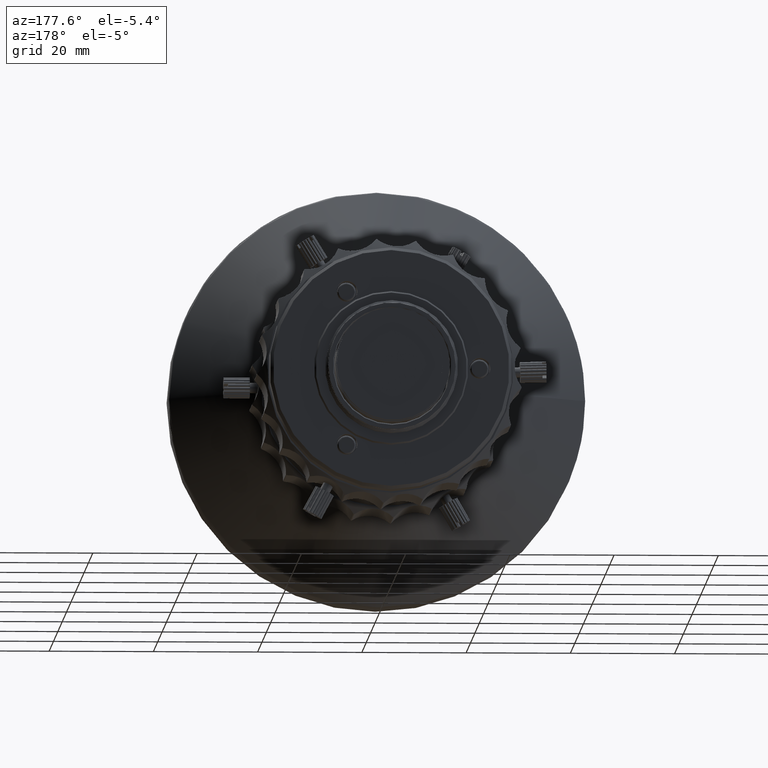
[diagram: clean part render]
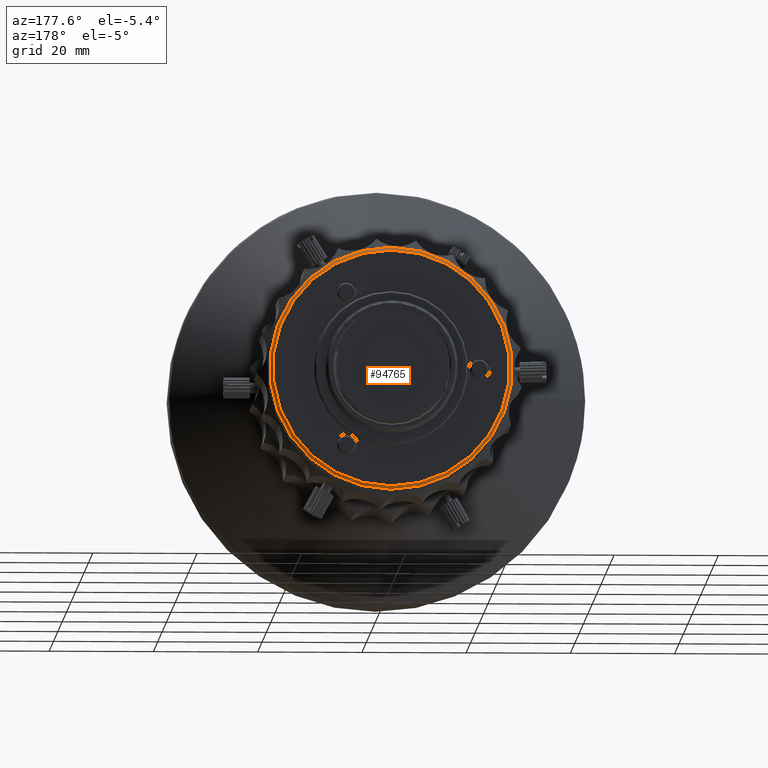
[diagram: same view with one face highlighted and labeled with its STEP entity id]
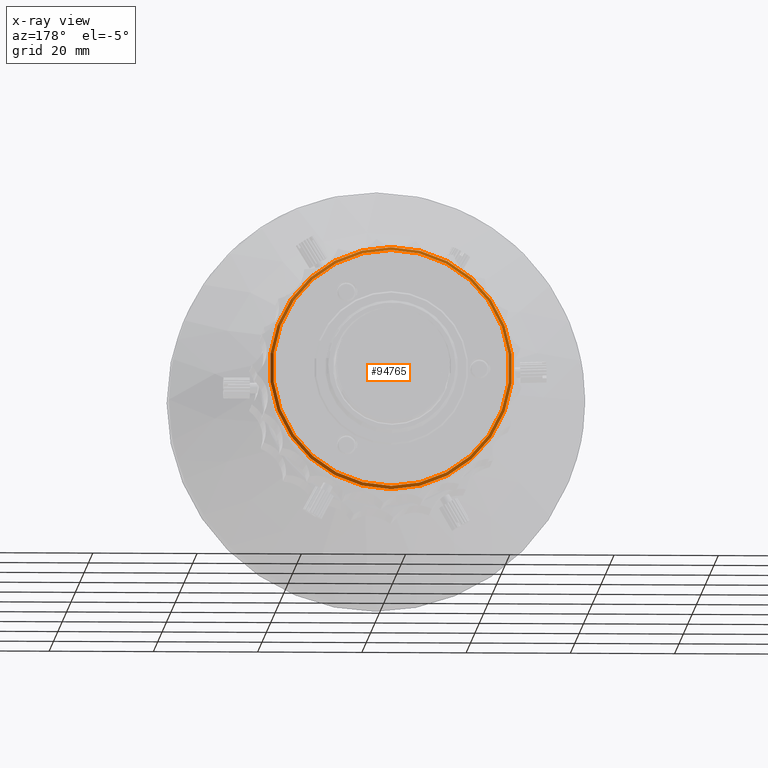
[diagram: x-ray of the same camera — body ghosted, the highlighted face saturated]
A machine part, auxiliary view. The second image highlights one B-rep face of the part: STEP entity #94765.
The next image is the same camera in x-ray: the body ghosted, the highlighted face saturated — about 0% of this face is hidden behind the body in this view.
In plain terms, the highlighted conical surface has half-angle 45 deg.
Its self-contained STEP definition (entity closure, byte-faithful):
#2472 = DIRECTION ( 'NONE',  ( 4.757805020752761859E-08, 0.000000000000000000, 0.9999999999999988898 ) ) ;
#3649 = AXIS2_PLACEMENT_3D ( 'NONE', #45673, #87747, #2472 ) ;
#8805 = CIRCLE ( 'NONE', #23322, 23.30000183082180953 ) ;
#14011 = EDGE_CURVE ( 'NONE', #38448, #38448, #52704, .T. ) ;
#14474 = EDGE_LOOP ( 'NONE', ( #43346 ) ) ;
#18735 = FACE_BOUND ( 'NONE', #14474, .T. ) ;
#23322 = AXIS2_PLACEMENT_3D ( 'NONE', #41943, #43067, #44753 ) ;
#25030 = EDGE_LOOP ( 'NONE', ( #70558 ) ) ;
#29374 = CARTESIAN_POINT ( 'NONE',  ( 1.809033205897187488E-06, 73.51993811429849757, 23.30000223523517278 ) ) ;
#35820 = FACE_OUTER_BOUND ( 'NONE', #25030, .T. ) ;
#37488 = DIRECTION ( 'NONE',  ( 8.276111117004355824E-19, -1.000000000000000000, 4.121950411566822445E-17 ) ) ;
#38448 = VERTEX_POINT ( 'NONE', #47532 ) ;
#41041 = EDGE_CURVE ( 'NONE', #74242, #74242, #8805, .T. ) ;
#41943 = CARTESIAN_POINT ( 'NONE',  ( 7.004645489548619826E-07, 73.51993811429849757, 4.044133876930619027E-07 ) ) ;
#43067 = DIRECTION ( 'NONE',  ( -8.276111117004355824E-19, 1.000000000000000000, -4.121950411566822445E-17 ) ) ;
#43346 = ORIENTED_EDGE ( 'NONE', *, *, #14011, .T. ) ;
#44753 = DIRECTION ( 'NONE',  ( 4.757805020752761859E-08, 0.000000000000000000, 0.9999999999999988898 ) ) ;
#45673 = CARTESIAN_POINT ( 'NONE',  ( 7.004645489543653037E-07, 74.11993814910550782, 4.044133876683301817E-07 ) ) ;
#47532 = CARTESIAN_POINT ( 'NONE',  ( 1.780486377428271892E-06, 74.11993814910550782, 22.70000227004319271 ) ) ;
#52704 = CIRCLE ( 'NONE', #3649, 22.70000186562982947 ) ;
#53446 = DIRECTION ( 'NONE',  ( 4.757805020752761859E-08, 0.000000000000000000, 0.9999999999999988898 ) ) ;
#61397 = CARTESIAN_POINT ( 'NONE',  ( 7.004645489548619826E-07, 73.51993811429849757, 4.044133876930619027E-07 ) ) ;
#62836 = AXIS2_PLACEMENT_3D ( 'NONE', #61397, #37488, #53446 ) ;
#64598 = CONICAL_SURFACE ( 'NONE', #62836, 23.30000183082180953, 0.7853981053849262706 ) ;
#70558 = ORIENTED_EDGE ( 'NONE', *, *, #41041, .T. ) ;
#74242 = VERTEX_POINT ( 'NONE', #29374 ) ;
#87747 = DIRECTION ( 'NONE',  ( 8.276111117004355824E-19, -1.000000000000000000, 4.121950411566822445E-17 ) ) ;
#94765 = ADVANCED_FACE ( 'NONE', ( #35820, #18735 ), #64598, .T. ) ;